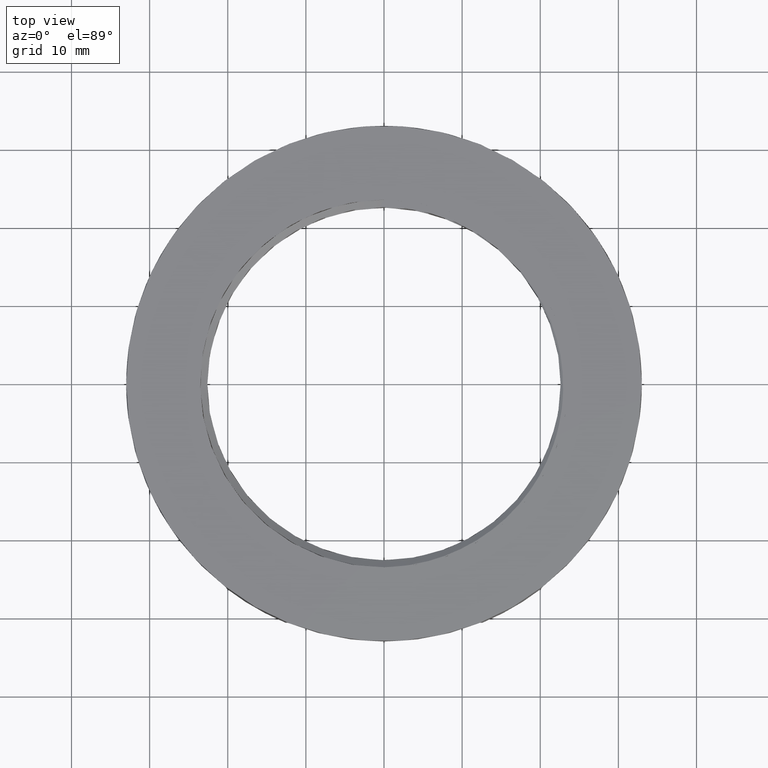
[diagram: clean part render]
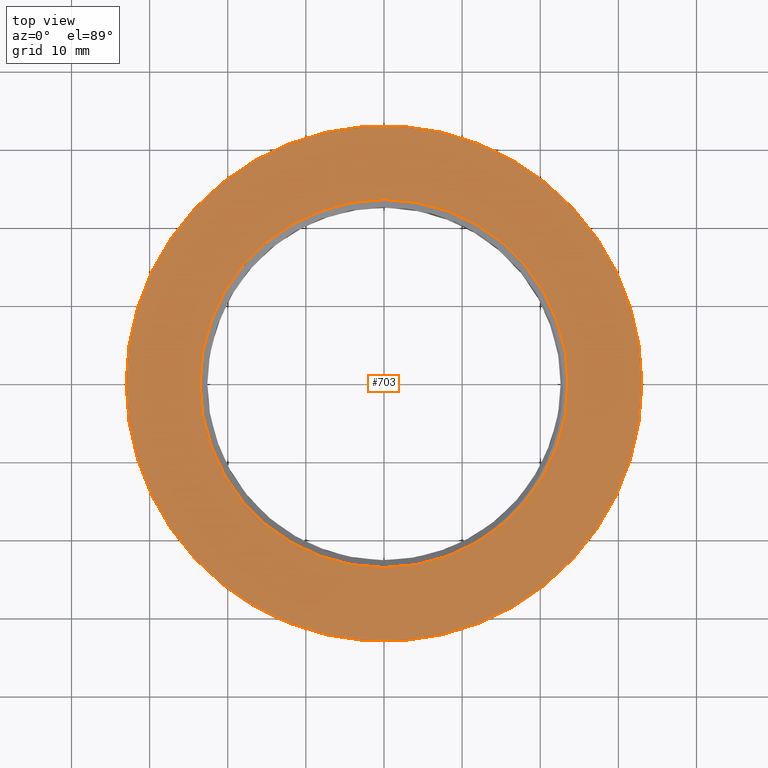
[diagram: same view with one face highlighted and labeled with its STEP entity id]
A machine part, top view. The second image highlights one B-rep face of the part: STEP entity #703.
In plain terms, the highlighted planar face has unit normal (0, 0, 1).
Its self-contained STEP definition (entity closure, byte-faithful):
#10 = EDGE_LOOP ( 'NONE', ( #66, #44 ) ) ;
#21 = EDGE_LOOP ( 'NONE', ( #68, #50 ) ) ;
#44 = ORIENTED_EDGE ( 'NONE', *, *, #699, .T. ) ;
#50 = ORIENTED_EDGE ( 'NONE', *, *, #679, .T. ) ;
#66 = ORIENTED_EDGE ( 'NONE', *, *, #617, .T. ) ;
#68 = ORIENTED_EDGE ( 'NONE', *, *, #666, .T. ) ;
#270 = VERTEX_POINT ( 'NONE', #343 ) ;
#277 = VERTEX_POINT ( 'NONE', #337 ) ;
#300 = VERTEX_POINT ( 'NONE', #362 ) ;
#317 = VERTEX_POINT ( 'NONE', #380 ) ;
#337 = CARTESIAN_POINT ( 'NONE',  ( -23.55000000000000100, 0.0000000000000000000, 7.199999999999998400 ) ) ;
#343 = CARTESIAN_POINT ( 'NONE',  ( 23.55000000000000100, 2.884043211992017000E-015, 7.199999999999998400 ) ) ;
#362 = CARTESIAN_POINT ( 'NONE',  ( -33.00000000000000000, 4.041334437186266200E-015, 7.200000000000002000 ) ) ;
#380 = CARTESIAN_POINT ( 'NONE',  ( 33.00000000000000000, 0.0000000000000000000, 7.200000000000002000 ) ) ;
#519 = CARTESIAN_POINT ( 'NONE',  ( 0.0000000000000000000, 0.0000000000000000000, 7.200000000000002000 ) ) ;
#529 = DIRECTION ( 'NONE',  ( 0.0000000000000000000, 0.0000000000000000000, 1.000000000000000000 ) ) ;
#531 = DIRECTION ( 'NONE',  ( 1.000000000000000000, 0.0000000000000000000, 0.0000000000000000000 ) ) ;
#617 = EDGE_CURVE ( 'NONE', #317, #300, #982, .T. ) ;
#666 = EDGE_CURVE ( 'NONE', #277, #270, #931, .T. ) ;
#679 = EDGE_CURVE ( 'NONE', #270, #277, #944, .T. ) ;
#699 = EDGE_CURVE ( 'NONE', #300, #317, #960, .T. ) ;
#703 = ADVANCED_FACE ( 'NONE', ( #1364, #1346 ), #1366, .T. ) ;
#931 = CIRCLE ( 'NONE', #938, 23.55000000000000100 ) ;
#938 = AXIS2_PLACEMENT_3D ( 'NONE', #1121, #1115, #1118 ) ;
#944 = CIRCLE ( 'NONE', #948, 23.55000000000000100 ) ;
#948 = AXIS2_PLACEMENT_3D ( 'NONE', #1222, #1221, #1194 ) ;
#959 = AXIS2_PLACEMENT_3D ( 'NONE', #1391, #1389, #1354 ) ;
#960 = CIRCLE ( 'NONE', #963, 33.00000000000000000 ) ;
#963 = AXIS2_PLACEMENT_3D ( 'NONE', #1390, #1344, #1380 ) ;
#982 = CIRCLE ( 'NONE', #984, 33.00000000000000000 ) ;
#984 = AXIS2_PLACEMENT_3D ( 'NONE', #519, #529, #531 ) ;
#1115 = DIRECTION ( 'NONE',  ( -0.0000000000000000000, -0.0000000000000000000, -1.000000000000000000 ) ) ;
#1118 = DIRECTION ( 'NONE',  ( 1.000000000000000000, 0.0000000000000000000, 0.0000000000000000000 ) ) ;
#1121 = CARTESIAN_POINT ( 'NONE',  ( 0.0000000000000000000, 0.0000000000000000000, 7.199999999999998400 ) ) ;
#1194 = DIRECTION ( 'NONE',  ( 1.000000000000000000, 0.0000000000000000000, 0.0000000000000000000 ) ) ;
#1221 = DIRECTION ( 'NONE',  ( -0.0000000000000000000, -0.0000000000000000000, -1.000000000000000000 ) ) ;
#1222 = CARTESIAN_POINT ( 'NONE',  ( 0.0000000000000000000, 0.0000000000000000000, 7.199999999999998400 ) ) ;
#1344 = DIRECTION ( 'NONE',  ( 0.0000000000000000000, 0.0000000000000000000, 1.000000000000000000 ) ) ;
#1346 = FACE_BOUND ( 'NONE', #21, .T. ) ;
#1354 = DIRECTION ( 'NONE',  ( 1.000000000000000000, 0.0000000000000000000, -0.0000000000000000000 ) ) ;
#1364 = FACE_OUTER_BOUND ( 'NONE', #10, .T. ) ;
#1366 = PLANE ( 'NONE',  #959 ) ;
#1380 = DIRECTION ( 'NONE',  ( 1.000000000000000000, 0.0000000000000000000, 0.0000000000000000000 ) ) ;
#1389 = DIRECTION ( 'NONE',  ( 0.0000000000000000000, 0.0000000000000000000, 1.000000000000000000 ) ) ;
#1390 = CARTESIAN_POINT ( 'NONE',  ( 0.0000000000000000000, 0.0000000000000000000, 7.200000000000002000 ) ) ;
#1391 = CARTESIAN_POINT ( 'NONE',  ( 34.64101615137755600, 4.411991708866667800E-015, 7.200000000000001100 ) ) ;